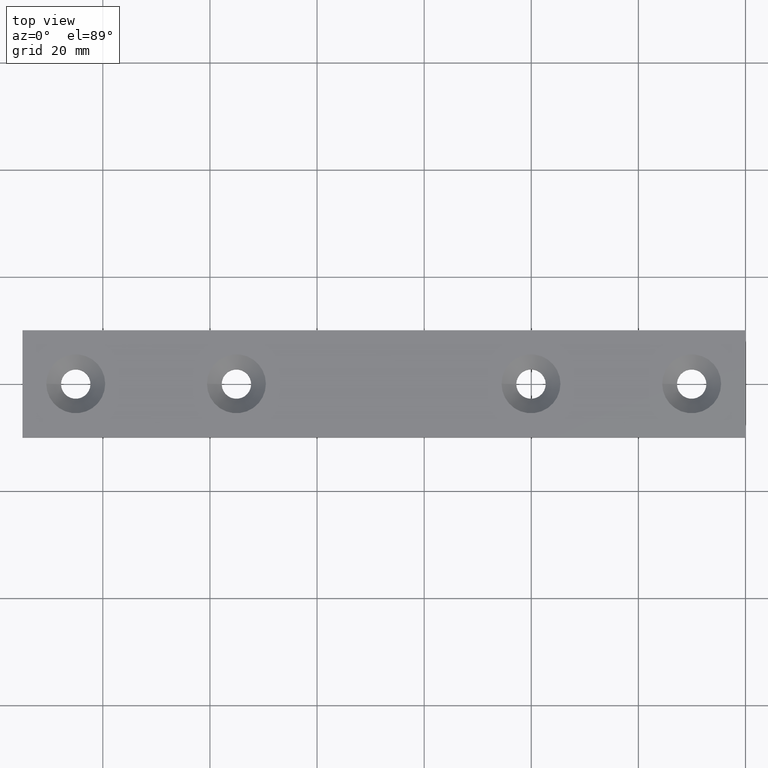
[diagram: clean part render]
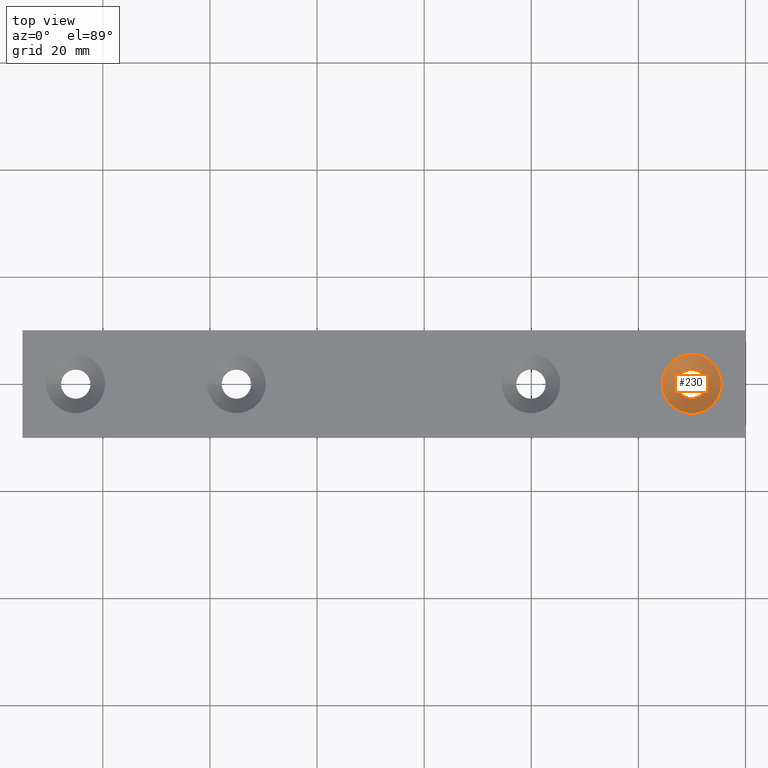
[diagram: same view with one face highlighted and labeled with its STEP entity id]
A machine part, top view. The second image highlights one B-rep face of the part: STEP entity #230.
In plain terms, the highlighted conical surface has half-angle 45 deg.
Its self-contained STEP definition (entity closure, byte-faithful):
#18=CONICAL_SURFACE('',#258,3.025,45.0000000000001);
#38=FACE_BOUND('',#94,.T.);
#46=CIRCLE('',#246,5.5);
#50=CIRCLE('',#257,2.75);
#64=FACE_OUTER_BOUND('',#93,.T.);
#93=EDGE_LOOP('',(#209));
#94=EDGE_LOOP('',(#210));
#134=VERTEX_POINT('',#366);
#138=VERTEX_POINT('',#381);
#158=EDGE_CURVE('',#134,#134,#46,.T.);
#162=EDGE_CURVE('',#138,#138,#50,.T.);
#209=ORIENTED_EDGE('',*,*,#158,.T.);
#210=ORIENTED_EDGE('',*,*,#162,.F.);
#230=ADVANCED_FACE('',(#64,#38),#18,.F.);
#246=AXIS2_PLACEMENT_3D('',#367,#299,#300);
#257=AXIS2_PLACEMENT_3D('',#382,#321,#322);
#258=AXIS2_PLACEMENT_3D('',#383,#323,#324);
#299=DIRECTION('center_axis',(-1.61487E-16,2.580957E-8,1.));
#300=DIRECTION('ref_axis',(1.,0.,0.));
#321=DIRECTION('center_axis',(0.,2.580957E-8,1.));
#322=DIRECTION('ref_axis',(1.,0.,0.));
#323=DIRECTION('center_axis',(-4.54354522613332E-17,2.58095686433476E-8,
1.));
#324=DIRECTION('ref_axis',(0.813826036051075,0.581108581114919,-1.49981617765473E-8));
#366=CARTESIAN_POINT('',(-15.5555287278403,1.29048312E-7,4.99999999999927));
#367=CARTESIAN_POINT('Origin',(-10.0555287278403,1.29048312E-7,4.99999999999927));
#381=CARTESIAN_POINT('',(-12.8055287278403,5.8071995E-8,2.24999999999928));
#382=CARTESIAN_POINT('Origin',(-10.0555287278403,5.8071995E-8,2.24999999999928));
#383=CARTESIAN_POINT('Origin',(-10.0555287278403,6.51696271947166E-8,2.52499999999928));